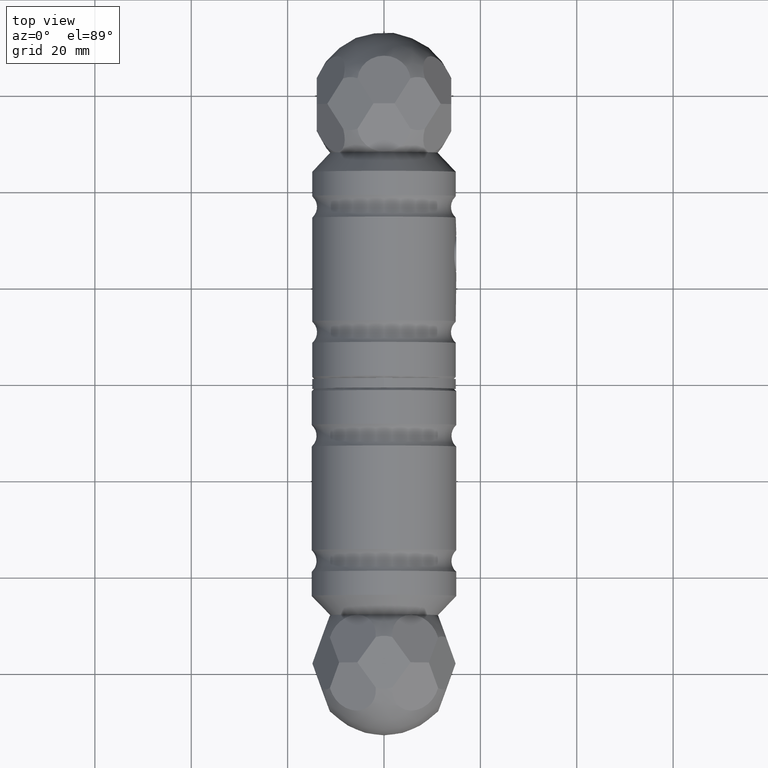
[diagram: clean part render]
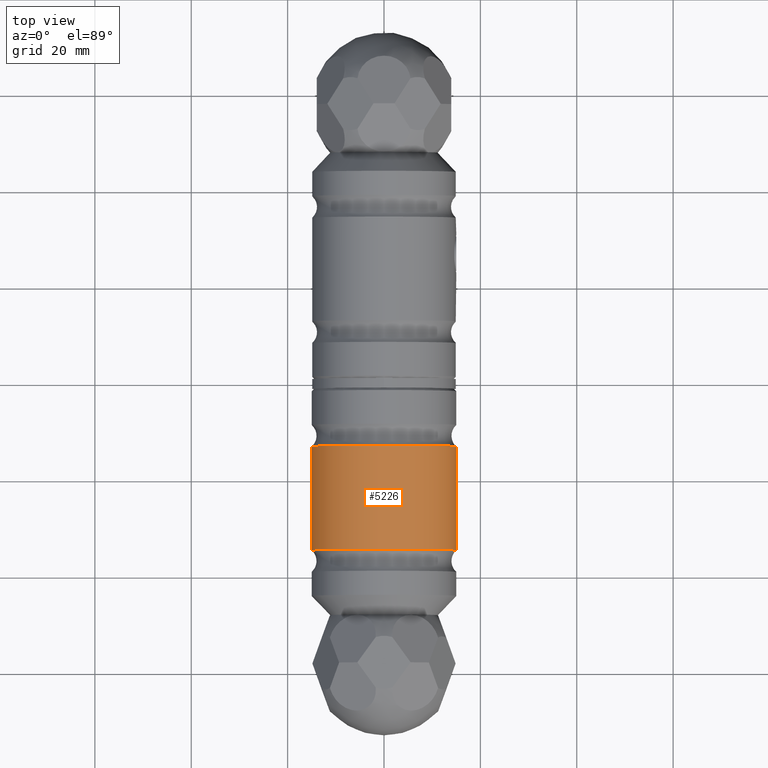
[diagram: same view with one face highlighted and labeled with its STEP entity id]
A machine part, top view. The second image highlights one B-rep face of the part: STEP entity #5226.
In plain terms, the highlighted cylindrical surface (bore or boss wall) has radius 15 mm, axis along (0, 1, -0).
Its self-contained STEP definition (entity closure, byte-faithful):
#15 = CARTESIAN_POINT ( 'NONE',  ( 15.00000000000000355, 12.00000000000000000, 0.000000000000000000 ) ) ;
#125 = CIRCLE ( 'NONE', #1029, 15.00000000000000355 ) ;
#1029 = AXIS2_PLACEMENT_3D ( 'NONE', #7730, #3055, #4210 ) ;
#3055 = DIRECTION ( 'NONE',  ( 2.749845802210205696E-18, -1.000000000000000000, 0.000000000000000000 ) ) ;
#3243 = ORIENTED_EDGE ( 'NONE', *, *, #10919, .F. ) ;
#3478 = EDGE_LOOP ( 'NONE', ( #3243 ) ) ;
#3761 = AXIS2_PLACEMENT_3D ( 'NONE', #14403, #6174, #9785 ) ;
#3854 = FACE_OUTER_BOUND ( 'NONE', #12032, .T. ) ;
#4210 = DIRECTION ( 'NONE',  ( 1.000000000000000000, 0.000000000000000000, 0.000000000000000000 ) ) ;
#4580 = CARTESIAN_POINT ( 'NONE',  ( 15.00000000000000355, 33.50000000000000000, -2.888894916580853780E-31 ) ) ;
#4905 = CIRCLE ( 'NONE', #3761, 15.00000000000000355 ) ;
#5157 = FACE_OUTER_BOUND ( 'NONE', #3478, .T. ) ;
#5226 = ADVANCED_FACE ( 'NONE', ( #3854, #5157 ), #13326, .T. ) ;
#6174 = DIRECTION ( 'NONE',  ( 2.749845802210205696E-18, -1.000000000000000000, 0.000000000000000000 ) ) ;
#7102 = AXIS2_PLACEMENT_3D ( 'NONE', #14836, #10016, #11132 ) ;
#7730 = CARTESIAN_POINT ( 'NONE',  ( -3.299814962652221721E-17, 12.00000000000000000, 0.000000000000000000 ) ) ;
#9785 = DIRECTION ( 'NONE',  ( 1.000000000000000000, 0.000000000000000000, 0.000000000000000000 ) ) ;
#10016 = DIRECTION ( 'NONE',  ( 2.749845802210205696E-18, -1.000000000000000000, 0.000000000000000000 ) ) ;
#10919 = EDGE_CURVE ( 'NONE', #11925, #11925, #125, .T. ) ;
#11132 = DIRECTION ( 'NONE',  ( 1.000000000000000000, 2.749845802210206081E-18, 0.000000000000000000 ) ) ;
#11401 = VERTEX_POINT ( 'NONE', #4580 ) ;
#11676 = ORIENTED_EDGE ( 'NONE', *, *, #12481, .T. ) ;
#11925 = VERTEX_POINT ( 'NONE', #15 ) ;
#12032 = EDGE_LOOP ( 'NONE', ( #11676 ) ) ;
#12481 = EDGE_CURVE ( 'NONE', #11401, #11401, #4905, .T. ) ;
#13326 = CYLINDRICAL_SURFACE ( 'NONE', #7102, 15.00000000000000355 ) ;
#14403 = CARTESIAN_POINT ( 'NONE',  ( -9.211983437404186559E-17, 33.50000000000000000, -2.888894916580853780E-31 ) ) ;
#14836 = CARTESIAN_POINT ( 'NONE',  ( 0.000000000000000000, 0.000000000000000000, 0.000000000000000000 ) ) ;